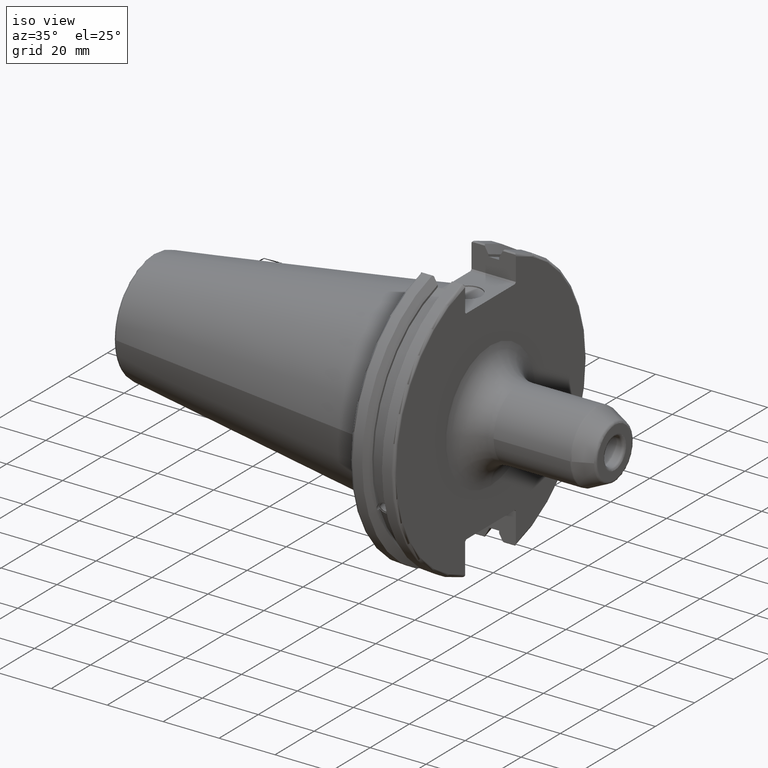
[diagram: clean part render]
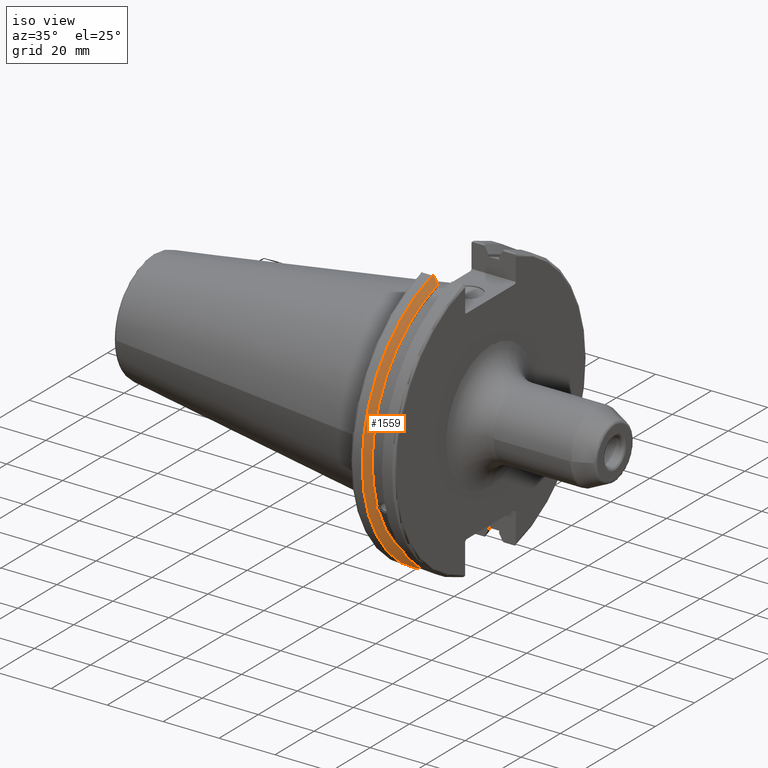
[diagram: same view with one face highlighted and labeled with its STEP entity id]
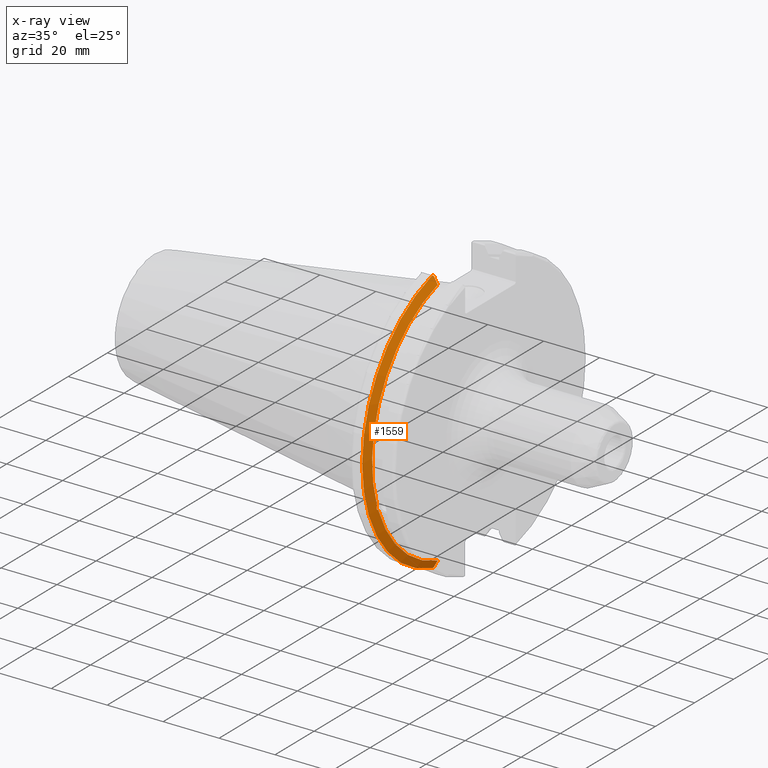
[diagram: x-ray of the same camera — body ghosted, the highlighted face saturated]
A machine part, iso view. The second image highlights one B-rep face of the part: STEP entity #1559.
The next image is the same camera in x-ray: the body ghosted, the highlighted face saturated — about 0% of this face is hidden behind the body in this view.
In plain terms, the highlighted conical surface has half-angle 60 deg.
Its self-contained STEP definition (entity closure, byte-faithful):
#24=(
BOUNDED_CURVE()
B_SPLINE_CURVE(2,(#3034,#3035,#3036),.UNSPECIFIED.,.F.,.F.)
B_SPLINE_CURVE_WITH_KNOTS((3,3),(0.,0.275823910673799),.UNSPECIFIED.)
CURVE()
GEOMETRIC_REPRESENTATION_ITEM()
RATIONAL_B_SPLINE_CURVE((1.,1.00038235574547,1.00012873636808))
REPRESENTATION_ITEM('')
);
#25=(
BOUNDED_CURVE()
B_SPLINE_CURVE(2,(#3046,#3047,#3048),.UNSPECIFIED.,.F.,.F.)
B_SPLINE_CURVE_WITH_KNOTS((3,3),(0.0558332664508419,0.331657177124507),
 .UNSPECIFIED.)
CURVE()
GEOMETRIC_REPRESENTATION_ITEM()
RATIONAL_B_SPLINE_CURVE((1.00012873636699,1.00038235574223,1.))
REPRESENTATION_ITEM('')
);
#26=(
BOUNDED_CURVE()
B_SPLINE_CURVE(2,(#3081,#3082,#3083),.UNSPECIFIED.,.F.,.F.)
B_SPLINE_CURVE_WITH_KNOTS((3,3),(0.,0.064824047289869),.UNSPECIFIED.)
CURVE()
GEOMETRIC_REPRESENTATION_ITEM()
RATIONAL_B_SPLINE_CURVE((1.,1.00011477674823,1.00019140645925))
REPRESENTATION_ITEM('')
);
#27=(
BOUNDED_CURVE()
B_SPLINE_CURVE(2,(#3089,#3090,#3091),.UNSPECIFIED.,.F.,.F.)
B_SPLINE_CURVE_WITH_KNOTS((3,3),(0.325260944932363,0.390084992222202),
 .UNSPECIFIED.)
CURVE()
GEOMETRIC_REPRESENTATION_ITEM()
RATIONAL_B_SPLINE_CURVE((1.00019140645909,1.00011477674813,1.))
REPRESENTATION_ITEM('')
);
#133=CIRCLE('',#1656,46.4219772964944);
#157=CIRCLE('',#1707,49.2125);
#169=CIRCLE('',#1742,46.4219772964944);
#187=CONICAL_SURFACE('',#1741,47.8172386482472,1.0471975511966);
#264=FACE_OUTER_BOUND('',#368,.T.);
#368=EDGE_LOOP('',(#1407,#1408,#1409,#1410,#1411,#1412,#1413,#1414));
#582=B_SPLINE_CURVE_WITH_KNOTS('',3,(#2568,#2569,#2570,#2571,#2572,#2573,
#2574,#2575,#2576,#2577,#2578,#2579,#2580,#2581),.UNSPECIFIED.,.F.,.F.,
(4,2,2,2,2,2,4),(0.426712868358719,0.441644498666907,0.480313313223131,
0.518982127779354,0.557650942335578,0.596319756891801,0.611251387199989),
 .UNSPECIFIED.);
#659=VERTEX_POINT('',#2565);
#660=VERTEX_POINT('',#2567);
#677=VERTEX_POINT('',#2658);
#739=VERTEX_POINT('',#3031);
#740=VERTEX_POINT('',#3033);
#743=VERTEX_POINT('',#3045);
#747=VERTEX_POINT('',#3079);
#748=VERTEX_POINT('',#3085);
#829=EDGE_CURVE('',#660,#659,#582,.T.);
#852=EDGE_CURVE('',#660,#677,#133,.T.);
#936=EDGE_CURVE('',#740,#739,#24,.T.);
#942=EDGE_CURVE('',#743,#677,#25,.T.);
#950=EDGE_CURVE('',#747,#739,#26,.T.);
#952=EDGE_CURVE('',#747,#748,#157,.T.);
#953=EDGE_CURVE('',#743,#748,#27,.T.);
#986=EDGE_CURVE('',#740,#659,#169,.T.);
#1407=ORIENTED_EDGE('',*,*,#829,.T.);
#1408=ORIENTED_EDGE('',*,*,#986,.F.);
#1409=ORIENTED_EDGE('',*,*,#936,.T.);
#1410=ORIENTED_EDGE('',*,*,#950,.F.);
#1411=ORIENTED_EDGE('',*,*,#952,.T.);
#1412=ORIENTED_EDGE('',*,*,#953,.F.);
#1413=ORIENTED_EDGE('',*,*,#942,.T.);
#1414=ORIENTED_EDGE('',*,*,#852,.F.);
#1559=ADVANCED_FACE('',(#264),#187,.T.);
#1656=AXIS2_PLACEMENT_3D('',#2659,#1916,#1917);
#1707=AXIS2_PLACEMENT_3D('',#3087,#2063,#2064);
#1741=AXIS2_PLACEMENT_3D('',#3184,#2146,#2147);
#1742=AXIS2_PLACEMENT_3D('',#3185,#2148,#2149);
#1916=DIRECTION('center_axis',(1.,0.,0.));
#1917=DIRECTION('ref_axis',(0.,0.,-1.));
#2063=DIRECTION('center_axis',(1.,0.,0.));
#2064=DIRECTION('ref_axis',(0.,0.,-1.));
#2146=DIRECTION('center_axis',(-1.,0.,0.));
#2147=DIRECTION('ref_axis',(0.,-1.,-1.22464679914735E-16));
#2148=DIRECTION('center_axis',(1.,0.,0.));
#2149=DIRECTION('ref_axis',(0.,0.,-1.));
#2565=CARTESIAN_POINT('',(9.2191,-43.9096390749305,-15.0646464421033));
#2567=CARTESIAN_POINT('',(9.2191,-43.3201030900029,-16.684383248648));
#2568=CARTESIAN_POINT('Ctrl Pts',(9.2191,-43.3201030900029,-16.6843832486479));
#2569=CARTESIAN_POINT('Ctrl Pts',(9.20211843903392,-43.3613106941341,-16.6592273018006));
#2570=CARTESIAN_POINT('Ctrl Pts',(9.18608675403322,-43.4012416983557,-16.6326763251437));
#2571=CARTESIAN_POINT('Ctrl Pts',(9.13238673845037,-43.5391037343221,-16.5325130832406));
#2572=CARTESIAN_POINT('Ctrl Pts',(9.09621610663555,-43.6406982153491,-16.4411807953719));
#2573=CARTESIAN_POINT('Ctrl Pts',(9.04690868251975,-43.8110833825827,-16.2291323464527));
#2574=CARTESIAN_POINT('Ctrl Pts',(9.0341,-43.8794096049168,-16.10796730316));
#2575=CARTESIAN_POINT('Ctrl Pts',(9.0341,-43.9675796948952,-15.8657219718732));
#2576=CARTESIAN_POINT('Ctrl Pts',(9.04690868251975,-43.9931221605125,-15.7289849146254));
#2577=CARTESIAN_POINT('Ctrl Pts',(9.09621610663555,-43.9989016655819,-15.4570249042868));
#2578=CARTESIAN_POINT('Ctrl Pts',(9.13238673845037,-43.9797830409458,-15.3217566390708));
#2579=CARTESIAN_POINT('Ctrl Pts',(9.18608675403322,-43.9385582852181,-15.1564111356409));
#2580=CARTESIAN_POINT('Ctrl Pts',(9.20211843903392,-43.9250360001461,-15.1104047527575));
#2581=CARTESIAN_POINT('Ctrl Pts',(9.2191,-43.9096390749305,-15.0646464421033));
#2658=CARTESIAN_POINT('',(9.2191,-12.95,-44.5791147973604));
#2659=CARTESIAN_POINT('Origin',(9.2191,0.,0.));
#3031=CARTESIAN_POINT('',(7.88638960562424,-12.95,46.9780755322918));
#3033=CARTESIAN_POINT('',(9.2191,-12.95,44.5791147973604));
#3034=CARTESIAN_POINT('Ctrl Pts',(9.2191,-12.95,44.5791147973604));
#3035=CARTESIAN_POINT('Ctrl Pts',(8.57020449054213,-12.95,45.7494966802443));
#3036=CARTESIAN_POINT('Ctrl Pts',(7.88638960562424,-12.95,46.9780755322918));
#3045=CARTESIAN_POINT('',(7.88638960562425,-12.95,-46.9780755322917));
#3046=CARTESIAN_POINT('Ctrl Pts',(7.88638960562425,-12.95,-46.9780755322917));
#3047=CARTESIAN_POINT('Ctrl Pts',(8.5702044905427,-12.95,-45.7494966802433));
#3048=CARTESIAN_POINT('Ctrl Pts',(9.2191,-12.95,-44.5791147973604));
#3079=CARTESIAN_POINT('',(7.60799096595127,-13.4317035994433,47.3440544806494));
#3081=CARTESIAN_POINT('Ctrl Pts',(7.60799096595127,-13.4317035994433,47.3440544806494));
#3082=CARTESIAN_POINT('Ctrl Pts',(7.74826896663813,-13.1896660169967,47.1601640966265));
#3083=CARTESIAN_POINT('Ctrl Pts',(7.88638960562424,-12.95,46.9780755322918));
#3085=CARTESIAN_POINT('',(7.60799096595127,-13.4317035994433,-47.3440544806494));
#3087=CARTESIAN_POINT('Origin',(7.60799096595127,0.,0.));
#3089=CARTESIAN_POINT('Ctrl Pts',(7.88638960562425,-12.95,-46.9780755322917));
#3090=CARTESIAN_POINT('Ctrl Pts',(7.74826896663813,-13.1896660169967,-47.1601640966265));
#3091=CARTESIAN_POINT('Ctrl Pts',(7.60799096595127,-13.4317035994433,-47.3440544806494));
#3184=CARTESIAN_POINT('Origin',(8.41354548297563,0.,0.));
#3185=CARTESIAN_POINT('Origin',(9.2191,0.,0.));